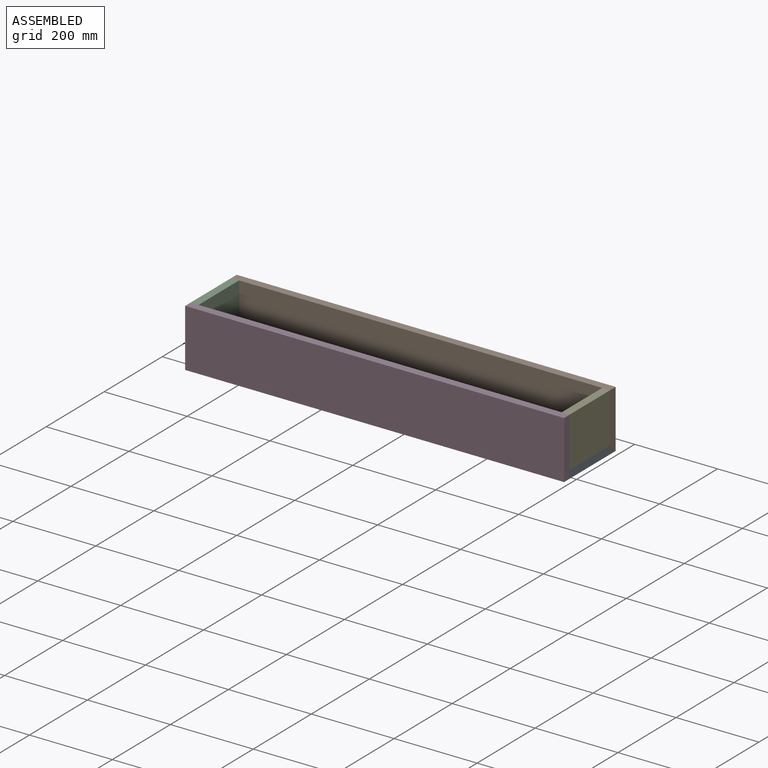
[diagram: assembled view]
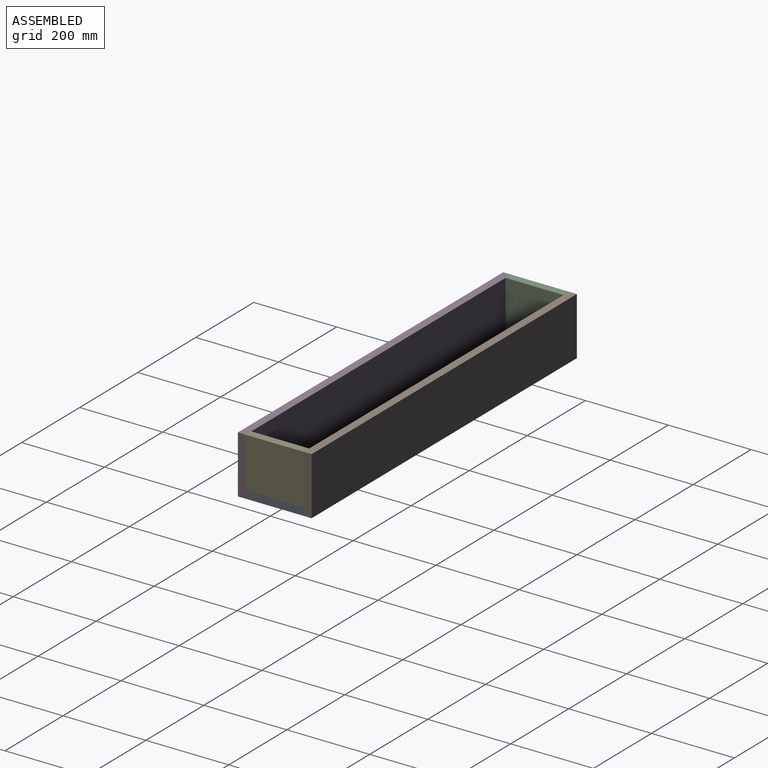
[diagram: assembled view, second angle]
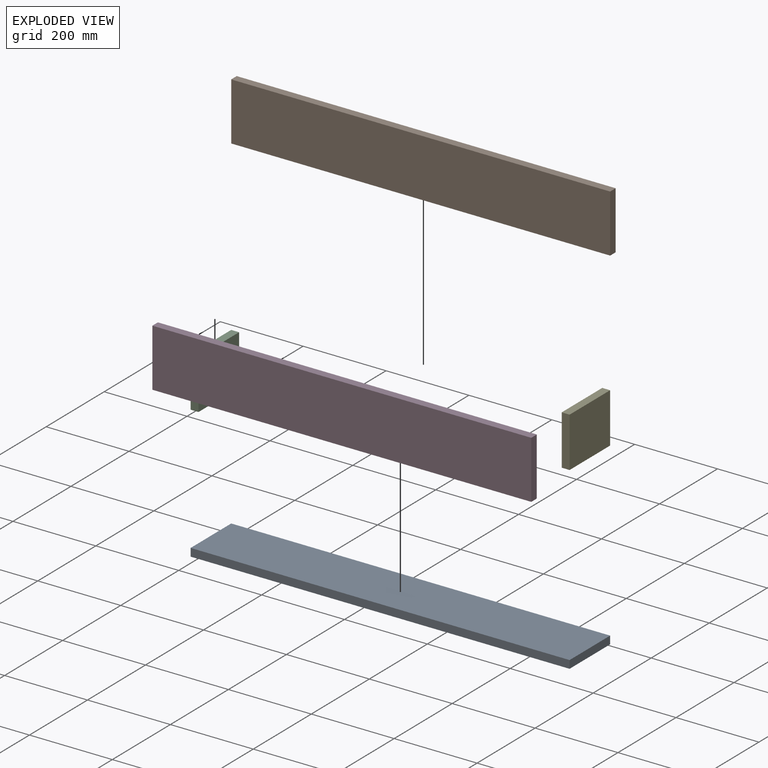
[diagram: exploded view]
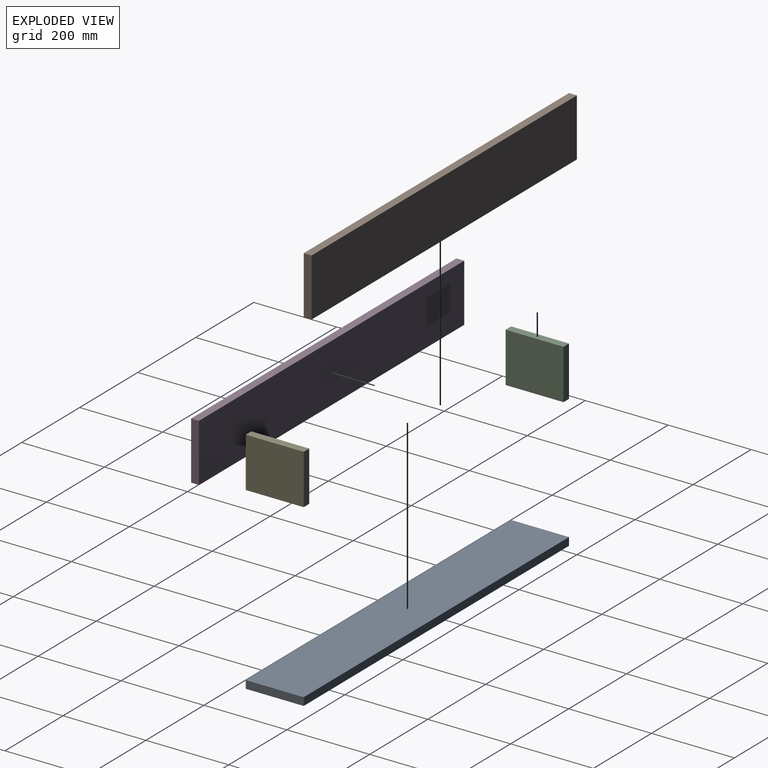
[diagram: exploded view, second angle]
ASSEMBLY  parts=5 mates=12
PART A: 6 faces, bbox 914.4x19.1x139.7 mm
  f0: plane 139.7x19.05mm, normal (-1,0,0), area 2661.3mm2, adj f1,f3,f4,f5
  f1: plane 914.4x19.05mm, normal (0,0,-1), area 17419.3mm2, adj f0,f2,f4,f5
  f2: plane 139.7x19.05mm, normal (1,0,0), area 2661.3mm2, adj f1,f3,f4,f5
  f3: plane 914.4x19.05mm, normal (0,0,1), area 17419.3mm2, adj f0,f2,f4,f5
  f4: plane 914.4x139.7mm, normal (0,-1,0), area 127741.7mm2, adj f0,f1,f2,f3
  f5: plane 914.4x139.7mm, normal (0,1,0), area 127741.7mm2, adj f0,f1,f2,f3
PART B: same geometry as A
PART C: 6 faces, bbox 139.7x19.1x120.7 mm
  f0: plane 139.7x19.05mm, normal (0,0,1), area 2661.3mm2, adj f1,f3,f4,f5
  f1: plane 120.65x19.05mm, normal (-1,0,0), area 2298.4mm2, adj f0,f2,f4,f5
  f2: plane 139.7x19.05mm, normal (0,0,-1), area 2661.3mm2, adj f1,f3,f4,f5
  f3: plane 120.65x19.05mm, normal (1,0,0), area 2298.4mm2, adj f0,f2,f4,f5
  f4: plane 139.7x120.65mm, normal (0,-1,0), area 16854.8mm2, adj f0,f1,f2,f3
  f5: plane 139.7x120.65mm, normal (0,1,0), area 16854.8mm2, adj f0,f1,f2,f3
PART D: same geometry as A
PART E: same geometry as C
PLACE A rot(axis=(-1,0,0),90deg) t=(0,-158.75,0)mm
PLACE B at identity fixed
PLACE C rot(axis=(0.71,0.71,0),180deg) t=(19.05,-158.75,-147.69)mm
PLACE D rot(axis=(1,0,0),180deg) t=(0,-177.8,139.7)mm
PLACE E rot(axis=(0,0,1),90deg) t=(895.35,-158.75,306.44)mm
MATE planar E.f0 <-> B.f3  axis (0,0,1) through (904.88,-88.9,139.7)mm
MATE planar D.f4 <-> C.f1  axis (0,1,0) through (457.2,-158.75,69.85)mm
MATE planar C.f3 <-> B.f4  axis (0,1,0) through (9.53,-19.05,79.38)mm
MATE planar A.f5 <-> D.f3  axis (0,0,-1) through (457.2,-88.9,0)mm
MATE planar A.f5 <-> B.f1  axis (0,0,-1) through (457.2,-88.9,0)mm
MATE planar E.f1 <-> D.f4  axis (0,-1,0) through (904.88,-158.75,79.38)mm
MATE planar C.f4 <-> D.f0  axis (-1,0,0) through (0,-88.9,79.38)mm
MATE planar A.f3 <-> B.f4  axis (0,1,0) through (457.2,-19.05,9.53)mm
MATE planar C.f4 <-> B.f0  axis (-1,0,0) through (0,-88.9,79.38)mm
MATE planar E.f4 <-> D.f2  axis (1,0,0) through (914.4,-88.9,79.38)mm
MATE planar A.f2 <-> D.f2  axis (1,0,0) through (914.4,-88.9,9.53)mm
MATE planar C.f2 <-> B.f3  axis (0,0,1) through (9.53,-88.9,139.7)mm
